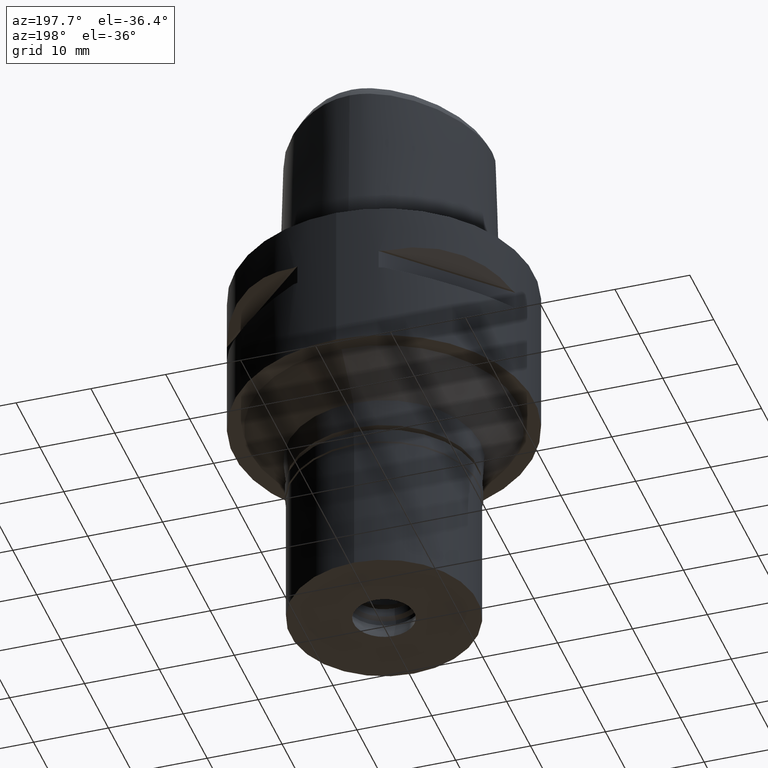
[diagram: clean part render]
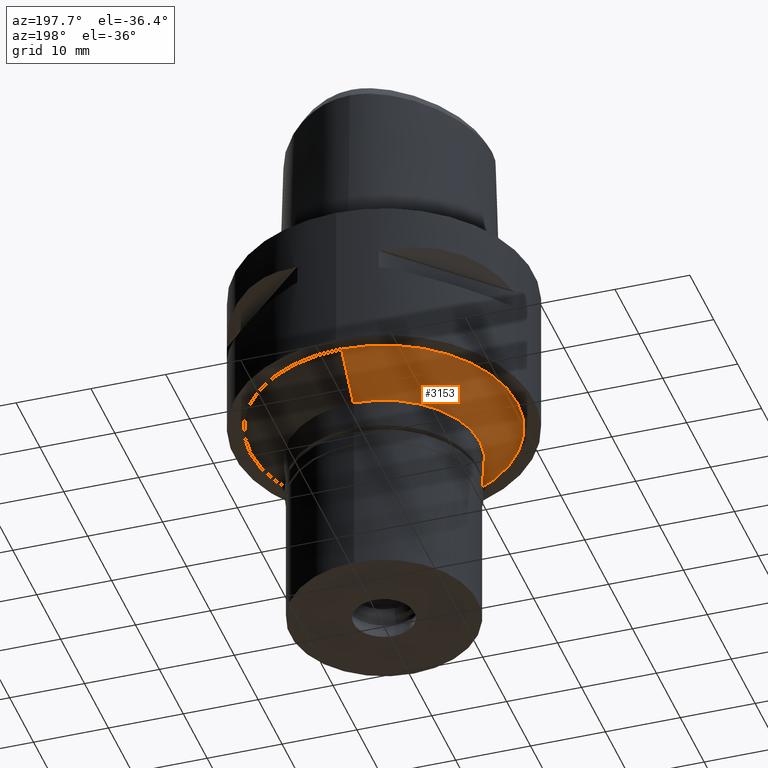
[diagram: same view with one face highlighted and labeled with its STEP entity id]
A machine part, auxiliary view. The second image highlights one B-rep face of the part: STEP entity #3153.
In plain terms, the highlighted conical surface has half-angle 45 deg.
Its self-contained STEP definition (entity closure, byte-faithful):
#159 = AXIS2_PLACEMENT_3D ( 'NONE', #1073, #2520, #3965 ) ;
#487 = VERTEX_POINT ( 'NONE', #1723 ) ;
#562 = ORIENTED_EDGE ( 'NONE', *, *, #2495, .T. ) ;
#607 = LINE ( 'NONE', #1377, #3411 ) ;
#740 = VERTEX_POINT ( 'NONE', #1702 ) ;
#762 = LINE ( 'NONE', #3278, #2503 ) ;
#793 = VERTEX_POINT ( 'NONE', #4288 ) ;
#862 = EDGE_LOOP ( 'NONE', ( #1000, #3265, #2678, #562 ) ) ;
#894 = EDGE_CURVE ( 'NONE', #793, #487, #762, .T. ) ;
#1000 = ORIENTED_EDGE ( 'NONE', *, *, #2492, .F. ) ;
#1073 = CARTESIAN_POINT ( 'NONE',  ( 0.0000000000000000000, 0.0000000000000000000, -22.50000000000000000 ) ) ;
#1377 = CARTESIAN_POINT ( 'NONE',  ( 0.0000000000000000000, 17.82370805504999822, -20.00000000000000000 ) ) ;
#1659 = DIRECTION ( 'NONE',  ( 0.0000000000000000000, -1.000000000000000000, 0.0000000000000000000 ) ) ;
#1702 = CARTESIAN_POINT ( 'NONE',  ( 0.0000000000000000000, 12.82370805505000000, -25.00000000000000000 ) ) ;
#1723 = CARTESIAN_POINT ( 'NONE',  ( 0.0000000000000000000, -12.82370805505000000, -25.00000000000000000 ) ) ;
#2030 = VERTEX_POINT ( 'NONE', #2142 ) ;
#2142 = CARTESIAN_POINT ( 'NONE',  ( 0.0000000000000000000, 17.82370805504999822, -20.00000000000000000 ) ) ;
#2225 = CIRCLE ( 'NONE', #4427, 17.82370805504999822 ) ;
#2414 = CARTESIAN_POINT ( 'NONE',  ( 0.0000000000000000000, 0.0000000000000000000, -20.00000000000000000 ) ) ;
#2492 = EDGE_CURVE ( 'NONE', #487, #740, #3339, .T. ) ;
#2495 = EDGE_CURVE ( 'NONE', #2030, #740, #607, .T. ) ;
#2503 = VECTOR ( 'NONE', #4054, 1000.000000000000000 ) ;
#2520 = DIRECTION ( 'NONE',  ( 0.0000000000000000000, 0.0000000000000000000, 1.000000000000000000 ) ) ;
#2678 = ORIENTED_EDGE ( 'NONE', *, *, #4104, .T. ) ;
#3153 = ADVANCED_FACE ( 'NONE', ( #4330 ), #4263, .T. ) ;
#3168 = CARTESIAN_POINT ( 'NONE',  ( 0.0000000000000000000, 0.0000000000000000000, -25.00000000000000000 ) ) ;
#3265 = ORIENTED_EDGE ( 'NONE', *, *, #894, .F. ) ;
#3278 = CARTESIAN_POINT ( 'NONE',  ( 0.0000000000000000000, -17.82370805504999822, -20.00000000000000000 ) ) ;
#3339 = CIRCLE ( 'NONE', #3652, 12.82370805505000000 ) ;
#3411 = VECTOR ( 'NONE', #4268, 1000.000000000000000 ) ;
#3652 = AXIS2_PLACEMENT_3D ( 'NONE', #3168, #3855, #4630 ) ;
#3814 = DIRECTION ( 'NONE',  ( 0.0000000000000000000, 0.0000000000000000000, -1.000000000000000000 ) ) ;
#3855 = DIRECTION ( 'NONE',  ( 0.0000000000000000000, 0.0000000000000000000, -1.000000000000000000 ) ) ;
#3965 = DIRECTION ( 'NONE',  ( 0.0000000000000000000, 1.000000000000000000, 0.0000000000000000000 ) ) ;
#4054 = DIRECTION ( 'NONE',  ( 0.0000000000000000000, 0.7071067811867980391, -0.7071067811862969954 ) ) ;
#4104 = EDGE_CURVE ( 'NONE', #793, #2030, #2225, .T. ) ;
#4263 = CONICAL_SURFACE ( 'NONE', #159, 15.32370805505000178, 0.7853981633972997312 ) ;
#4268 = DIRECTION ( 'NONE',  ( 0.0000000000000000000, -0.7071067811867980391, -0.7071067811862969954 ) ) ;
#4288 = CARTESIAN_POINT ( 'NONE',  ( 0.0000000000000000000, -17.82370805504999822, -20.00000000000000000 ) ) ;
#4330 = FACE_OUTER_BOUND ( 'NONE', #862, .T. ) ;
#4427 = AXIS2_PLACEMENT_3D ( 'NONE', #2414, #3814, #1659 ) ;
#4630 = DIRECTION ( 'NONE',  ( 0.0000000000000000000, -1.000000000000000000, 0.0000000000000000000 ) ) ;